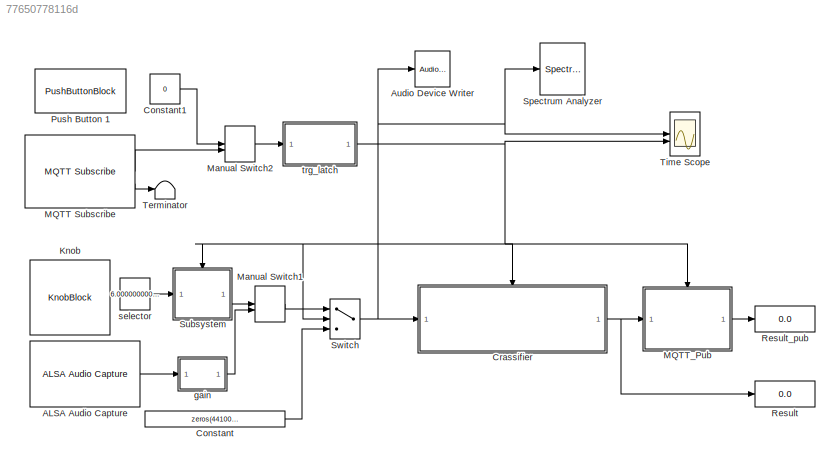
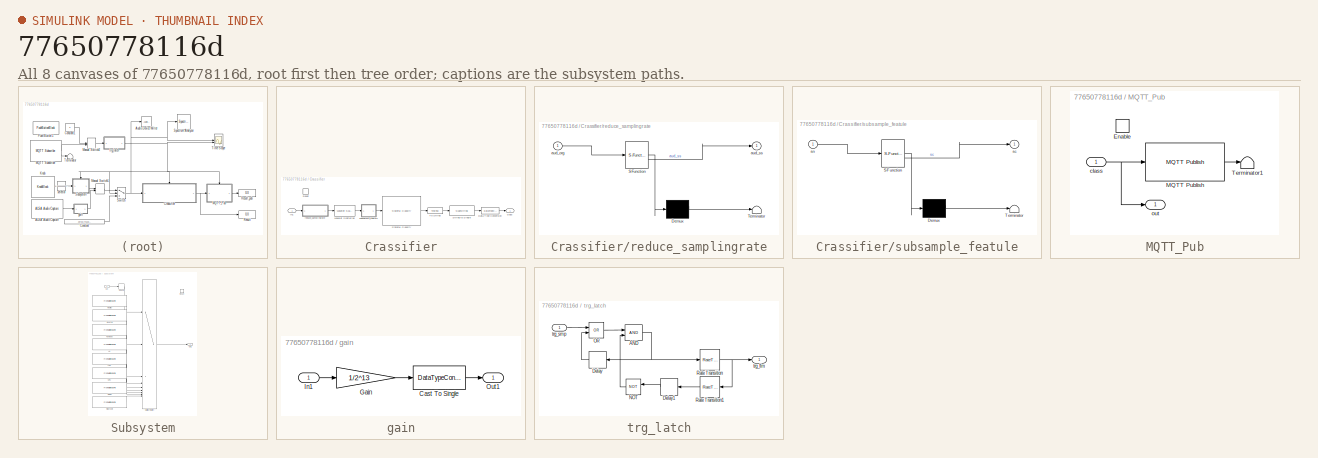
[diagram: thumbnail index - all 8 canvases of the model, root first then tree order]
MODEL slx_77650778116d
KIND model
CONFIG AbsTol = auto
CONFIG EnableMultiTasking = on
CONFIG FixedStep = auto
CONFIG InitFcn = timespan=1.5;\nsampling_subsample=3;
CONFIG MaxStep = auto
CONFIG MinStep = auto
CONFIG RelTol = 1e-3
CONFIG SampleTimeConstraint = Unconstrained
CONFIG SolverName = FixedStepAuto
CONFIG StartTime = 0.0
CONFIG StopTime = inf
BLOCK [Reference] ALSA Audio Capture   REF=raspberrypiAVlib/ALSA Audio Capture
  SourceBlock = raspberrypiAVlib/ALSA Audio Capture
  SourceType = codertarget.raspi.internal.RaspiALSAAudioCapture
BLOCK [Reference] Audio Device Writer   REF=dspsnks4/Audio Device
Writer
  Commented = on
  SourceBlock = dspsnks4/Audio Device\nWriter
  SourceType = Audio Device Writer
BLOCK [Constant] Constant
  OutDataTypeStr = single
  Value = zeros(44100*timespan,1)
BLOCK [Constant] Constant1
  Commented = on
  Value = 0
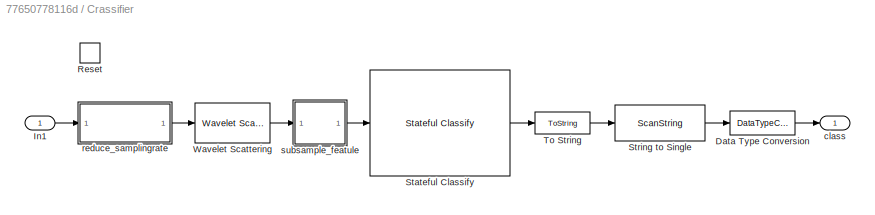
BLOCK [SubSystem] Crassifier
  TreatAsAtomicUnit = on
BLOCK [DataTypeConversion] Crassifier/Data Type Conversion
  OutDataTypeStr = uint8
  RndMeth = Floor
  SaturateOnIntegerOverflow = off
BLOCK [Inport] Crassifier/In1
BLOCK [ResetPort] Crassifier/Reset
  DisableCoverage = on
BLOCK [Reference] Crassifier/Stateful Classify  REF=deeplib/Stateful Classify
  SourceBlock = deeplib/Stateful Classify
  SourceType = Stateful Classify
BLOCK [ScanString] Crassifier/String to Single
  Format = "x%d_label"
BLOCK [ToString] Crassifier/To String
BLOCK [Reference] Crassifier/Wavelet Scattering  REF=dspfeatures/Wavelet Scattering
  SourceBlock = dspfeatures/Wavelet Scattering
  SourceType = waveletscattering
BLOCK [Outport] Crassifier/class
BLOCK [SubSystem] Crassifier/reduce_samplingrate
  ErrorFcn = Stateflow.Translate.translate
  LibrarySourceBlock = simulink/User-Defined\nFunctions/MATLAB Function
  PermitHierarchicalResolution = ExplicitOnly
  SFBlockType = MATLAB Function
  TreatAsAtomicUnit = on
BLOCK [Demux] Crassifier/reduce_samplingrate/ Demux 
  Outputs = 1
BLOCK [S-Function] Crassifier/reduce_samplingrate/ SFunction 
  EnableBusSupport = on
  FunctionName = sf_sfun
  PortCounts = [1 2]
  SFcnIsStateOwnerBlock = off
  SFunctionDeploymentMode = off
  Tag = Stateflow S-Function 5
BLOCK [Terminator] Crassifier/reduce_samplingrate/ Terminator 
BLOCK [Inport] Crassifier/reduce_samplingrate/aud_org
BLOCK [Outport] Crassifier/reduce_samplingrate/aud_ss
BLOCK [SubSystem] Crassifier/subsample_featule
  ErrorFcn = Stateflow.Translate.translate
  LibrarySourceBlock = simulink/User-Defined\nFunctions/MATLAB Function
  PermitHierarchicalResolution = ExplicitOnly
  SFBlockType = MATLAB Function
  TreatAsAtomicUnit = on
BLOCK [Demux] Crassifier/subsample_featule/ Demux 
  Outputs = 1
BLOCK [S-Function] Crassifier/subsample_featule/ SFunction 
  EnableBusSupport = on
  FunctionName = sf_sfun
  PortCounts = [1 2]
  SFcnIsStateOwnerBlock = off
  SFunctionDeploymentMode = off
  Tag = Stateflow S-Function 3
BLOCK [Terminator] Crassifier/subsample_featule/ Terminator 
BLOCK [Outport] Crassifier/subsample_featule/sc
BLOCK [Inport] Crassifier/subsample_featule/sn
BLOCK [KnobBlock] Knob
  Commented = on
  ScaleMax = 7
  TickInterval = 1
BLOCK [Reference] MQTT Subscribe   REF=raspberrypiIOTlib/MQTT Subscribe
  SourceBlock = raspberrypiIOTlib/MQTT Subscribe
  SourceType = codertarget.raspi.internal.RaspiMQTTSubscribe
BLOCK [SubSystem] MQTT_Pub
BLOCK [EnablePort] MQTT_Pub/Enable
BLOCK [Reference] MQTT_Pub/MQTT Publish  REF=raspberrypiIOTlib/MQTT Publish
  SourceBlock = raspberrypiIOTlib/MQTT Publish
  SourceType = codertarget.raspi.internal.RaspiMQTTPublish
BLOCK [Terminator] MQTT_Pub/Terminator1
BLOCK [Inport] MQTT_Pub/class
BLOCK [Outport] MQTT_Pub/out
BLOCK [ManualSwitch] Manual Switch1
  CurrentSetting = 0
BLOCK [ManualSwitch] Manual Switch2
  CurrentSetting = 0
BLOCK [PushButtonBlock] Push Button 1
  ButtonText = trg
  Commented = on
  OffValue = 0.000000
BLOCK [Display] Result
  Decimation = 1
BLOCK [Display] Result_pub
  Decimation = 1
BLOCK [SpectrumAnalyzer] Spectrum Analyzer 
  Commented = on
  DefaultConfigurationName = spbscopes.SpectrumAnalyzerBlockCfg
  FrequencyInputRBWFromPort = 0
  FrequencyInputRBWPort = 0
  FrequencyScale = Log
  FrequencySpan = Start and stop frequencies
  FrequencyVectorFromPort = 0
  FrequencyVectorPort = 0
  GraphicalSettings = {"GraphicalSettings":{"Style":{"BackgroundColor":[0.1568627450980392,0.1568627450980392,0.1568627450980392],"AxesColor":[0,0,0],"LabelsColor":[0.6862745098039216,0.6862745098039216,0.6862745098039216],"PreserveColors":false,"Visible":[true],"LineStyle":["-"],"LineColor":[[1,1,0.06666666666666667]],"LineWidth":[1.5],"Marker":["none"],"FontSize":"small"},"Cursors":{"Enabled":false,"XLocation":[2,8],...<+831ch>
  IsFrequencyInputMode = 0
  PlotAsTwoSidedSpectrum = off
  SampleRate = 44.1e3
  SampleRateSource = Property
  ScopeFrameLocation = window
  ScopeSpecificationString = spbscopes.SpectrumAnalyzerBlockCfg('CurrentConfiguration', extmgr.ConfigurationSet(extmgr.Configuration('Core','General UI',true),extmgr.Configuration('Core','Source UI',true),extmgr.Configuration('Sources','WiredSimulink',true),extmgr.Configuration('Visuals','Spectrum',true,'AxesProperties',struct('Color',{[0 0 0],[0 0 0]},'XColor',{[0.686274509803922 0.686274509803922 0.686274509803922],[0.68627...<+1720ch>
  SelectedToolstripTab = spectrumAnalyzerToolstrip.estimationTab
  StartFrequency = 20
  StopFrequency = 20e3
  ViewType = Spectrum and spectrogram
  WasSavedAsWebScope = on
  WindowPosition = [1101.000000,243.000000,434.000000,391.000000,]
  YLimits = [-181.7430131,-99.5033473]
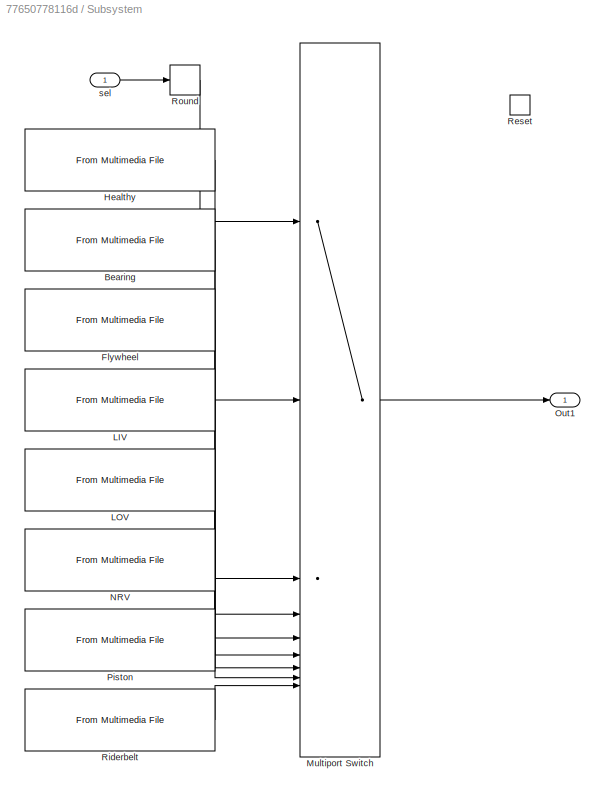
BLOCK [SubSystem] Subsystem
  Commented = on
BLOCK [Reference] Subsystem/Bearing  REF=dspvision/From Multimedia File
  SourceBlock = dspvision/From Multimedia File
  SourceType = From Multimedia File
BLOCK [Reference] Subsystem/Flywheel  REF=dspvision/From Multimedia File
  SourceBlock = dspvision/From Multimedia File
  SourceType = From Multimedia File
BLOCK [Reference] Subsystem/Healthy  REF=dspvision/From Multimedia File
  SourceBlock = dspvision/From Multimedia File
  SourceType = From Multimedia File
BLOCK [Reference] Subsystem/LIV  REF=dspvision/From Multimedia File
  SourceBlock = dspvision/From Multimedia File
  SourceType = From Multimedia File
BLOCK [Reference] Subsystem/LOV  REF=dspvision/From Multimedia File
  SourceBlock = dspvision/From Multimedia File
  SourceType = From Multimedia File
BLOCK [MultiPortSwitch] Subsystem/Multiport Switch
  DataPortOrder = Zero-based contiguous
  DiagnosticForDefault = None
  InputSameDT = off
  Inputs = 8
  SaturateOnIntegerOverflow = off
  zeroidx = on
BLOCK [Reference] Subsystem/NRV  REF=dspvision/From Multimedia File
  SourceBlock = dspvision/From Multimedia File
  SourceType = From Multimedia File
BLOCK [Outport] Subsystem/Out1
BLOCK [Reference] Subsystem/Piston  REF=dspvision/From Multimedia File
  SourceBlock = dspvision/From Multimedia File
  SourceType = From Multimedia File
BLOCK [ResetPort] Subsystem/Reset
  DisableCoverage = on
BLOCK [Reference] Subsystem/Riderbelt  REF=dspvision/From Multimedia File
  SourceBlock = dspvision/From Multimedia File
  SourceType = From Multimedia File
BLOCK [Rounding] Subsystem/Round
  Operator = round
BLOCK [Inport] Subsystem/sel
BLOCK [Switch] Switch
  Criteria = u2 > Threshold
  InputSameDT = off
  SaturateOnIntegerOverflow = off
BLOCK [Terminator] Terminator
BLOCK [Scope] Time Scope
  Commented = on
  DefaultConfigurationName = spbscopes.TimeScopeBlockCfg
  Floating = off
  NumInputPorts = 2
  ScopeSpecificationString = spbscopes.TimeScopeBlockCfg('CurrentConfiguration', extmgr.ConfigurationSet(extmgr.Configuration('Core','General UI',true,'ShowMainToolbar',false,'ShowStatusbar',false,'FigureColor',[0.156862745098039 0.156862745098039 0.156862745098039]),extmgr.Configuration('Core','Source UI',true),extmgr.Configuration('Sources','WiredSimulink',true),extmgr.Configuration('Visuals','Time Domain',true,'DisplayProp...<+1680ch>
  UserDataPersistent = on
BLOCK [SubSystem] gain
BLOCK [DataTypeConversion] gain/Cast To Single
  OutDataTypeStr = single
  RndMeth = Floor
  SaturateOnIntegerOverflow = off
BLOCK [Gain] gain/Gain
  Gain = 1/2^13
BLOCK [Inport] gain/In1
BLOCK [Outport] gain/Out1
BLOCK [Constant] selector
  Commented = on
  Value = 6.000000000000001
BLOCK [SubSystem] trg_latch
BLOCK [Logic] trg_latch/AND
  AllPortsSameDT = off
  IconShape = distinctive
  OutDataTypeStr = boolean
BLOCK [Delay] trg_latch/Delay
  DelayLength = 1
  InputPortMap = u0
BLOCK [Delay] trg_latch/Delay1
  DelayLength = 1
  InputPortMap = u0
BLOCK [Logic] trg_latch/NOT
  AllPortsSameDT = off
  IconShape = distinctive
  Operator = NOT
  OutDataTypeStr = boolean
BLOCK [Logic] trg_latch/OR
  AllPortsSameDT = off
  IconShape = distinctive
  Operator = OR
  OutDataTypeStr = boolean
BLOCK [RateTransition] trg_latch/Rate Transition
  Deterministic = off
  OutPortSampleTimeOpt = Inherit
BLOCK [RateTransition] trg_latch/Rate Transition1
  Deterministic = off
  OutPortSampleTimeOpt = Inherit
BLOCK [Outport] trg_latch/trg_flm
BLOCK [Inport] trg_latch/trg_smp
LINE ALSA Audio Capture :1 -> gain:1
LINE Constant1:1 -> Manual Switch2:1
LINE Constant:1 -> Switch:3
LINE Crassifier/Data Type Conversion:1 -> Crassifier/class:1
LINE Crassifier/In1:1 -> Crassifier/reduce_samplingrate:1
LINE Crassifier/Stateful Classify:1 -> Crassifier/To String:1
LINE Crassifier/String to Single:1 -> Crassifier/Data Type Conversion:1
LINE Crassifier/To String:1 -> Crassifier/String to Single:1
LINE Crassifier/Wavelet Scattering:1 -> Crassifier/subsample_featule:1
LINE Crassifier/reduce_samplingrate:1 -> Crassifier/Wavelet Scattering:1
LINE Crassifier/subsample_featule:1 -> Crassifier/Stateful Classify:1
NET Crassifier:1 -> MQTT_Pub:1, Result:1
LINE MQTT Subscribe :1 -> Manual Switch2:2
LINE MQTT Subscribe :2 -> Terminator:1
LINE MQTT_Pub/MQTT Publish:1 -> MQTT_Pub/Terminator1:1
NET MQTT_Pub/class:1 -> MQTT_Pub/MQTT Publish:1, MQTT_Pub/out:1
LINE MQTT_Pub:1 -> Result_pub:1
LINE Manual Switch1:1 -> Switch:1
LINE Manual Switch2:1 -> trg_latch:1
LINE Subsystem/Bearing:1 -> Subsystem/Multiport Switch:3
LINE Subsystem/Flywheel:1 -> Subsystem/Multiport Switch:4
LINE Subsystem/Healthy:1 -> Subsystem/Multiport Switch:2
LINE Subsystem/LIV:1 -> Subsystem/Multiport Switch:5
LINE Subsystem/LOV:1 -> Subsystem/Multiport Switch:6
LINE Subsystem/Multiport Switch:1 -> Subsystem/Out1:1
LINE Subsystem/NRV:1 -> Subsystem/Multiport Switch:7
LINE Subsystem/Piston:1 -> Subsystem/Multiport Switch:8
LINE Subsystem/Riderbelt:1 -> Subsystem/Multiport Switch:9
LINE Subsystem/Round:1 -> Subsystem/Multiport Switch:1
LINE Subsystem/sel:1 -> Subsystem/Round:1
LINE Subsystem:1 -> Manual Switch1:1
NET Switch:1 -> Audio Device Writer :1, Crassifier:1, Spectrum Analyzer :1, Time Scope:1
LINE gain/Cast To Single:1 -> gain/Out1:1
LINE gain/Gain:1 -> gain/Cast To Single:1
LINE gain/In1:1 -> gain/Gain:1
LINE gain:1 -> Manual Switch1:2
LINE selector:1 -> Subsystem:1
NET trg_latch/AND:1 -> trg_latch/Delay:1, trg_latch/Rate Transition:1
LINE trg_latch/Delay1:1 -> trg_latch/NOT:1
LINE trg_latch/Delay:1 -> trg_latch/OR:2
LINE trg_latch/NOT:1 -> trg_latch/AND:2
LINE trg_latch/OR:1 -> trg_latch/AND:1
LINE trg_latch/Rate Transition1:1 -> trg_latch/Delay1:1
NET trg_latch/Rate Transition:1 -> trg_latch/Rate Transition1:1, trg_latch/trg_flm:1
LINE trg_latch/trg_smp:1 -> trg_latch/OR:1
NET trg_latch:1 -> Crassifier:Reset, MQTT_Pub:enable, Subsystem:Reset, Switch:2, Time Scope:2
note: NET lines group one-source signal fan-out (src -> all destinations, sorted); 1:1 wires keep LINE
CHART Crassifier/reduce_samplingrate states=1 transitions=1
  STATE_LABEL 'eML_blk_kernel()'
  STATE_LABEL 'SCRIPT:\nfunction aud_ss = fcn(aud_org)\nsampling_subsample=3; % 44100Hz-> 14700Hz\naud_ss = single(aud_org(1:sampling_subsample:end,:));\n\n'
CHART Crassifier/subsample_featule states=1 transitions=1
  STATE_LABEL 'eML_blk_kernel()'
  STATE_LABEL 'SCRIPT:\nfunction sc = fcn(sn)\nfeature_subsample=2;\nsc = sn(:,1:feature_subsample:end);\n\n'
CHART  states=0 transitions=0
CHART  states=0 transitions=0
